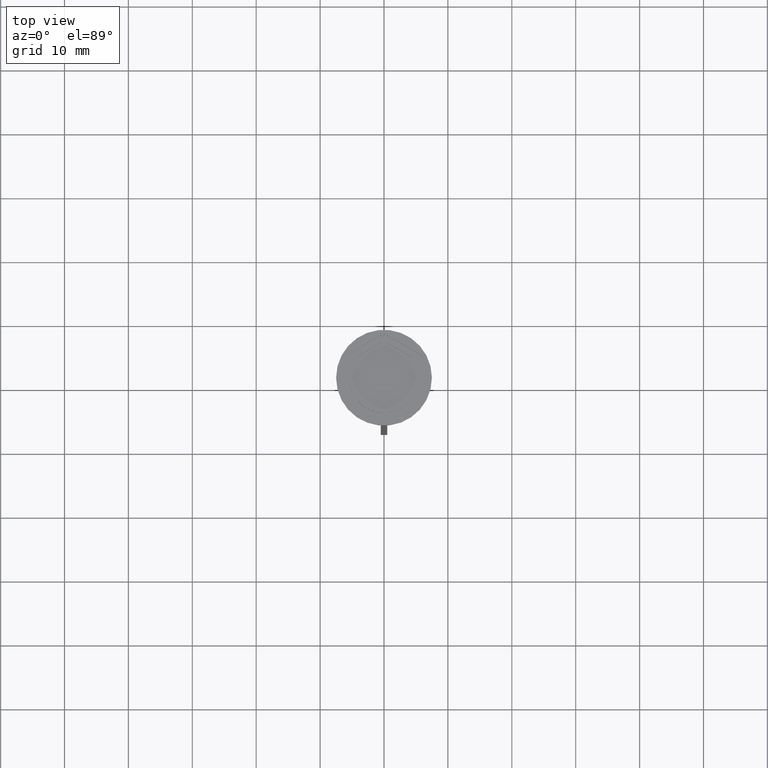
[diagram: clean part render]
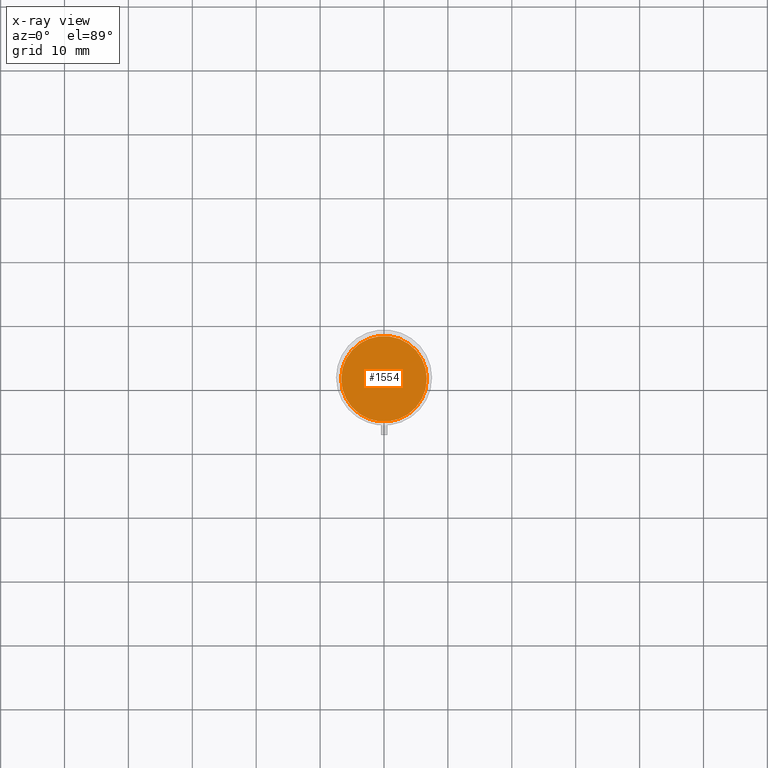
[diagram: x-ray — body ghosted, one internal face saturated and labeled with its STEP entity id]
A machine part, top view, then the same camera in x-ray: the body is ghosted and one INTERNAL B-rep face — a face not visible from any outside direction — is saturated and labeled: STEP entity #1554.
In plain terms, the highlighted planar face has unit normal (0, 0, -1).
Its self-contained STEP definition (entity closure, byte-faithful):
#185 = FACE_OUTER_BOUND ( 'NONE', #1254, .T. ) ;
#226 = DIRECTION ( 'NONE',  ( 0.000000000000000000, 0.000000000000000000, -1.000000000000000000 ) ) ;
#237 = CARTESIAN_POINT ( 'NONE',  ( 0.000000000000000000, 0.000000000000000000, -10.50000000000000178 ) ) ;
#274 = CARTESIAN_POINT ( 'NONE',  ( 0.000000000000000000, 0.000000000000000000, -10.50000000000000178 ) ) ;
#290 = ORIENTED_EDGE ( 'NONE', *, *, #1698, .T. ) ;
#559 = AXIS2_PLACEMENT_3D ( 'NONE', #2044, #890, #1702 ) ;
#744 = VERTEX_POINT ( 'NONE', #2126 ) ;
#756 = PLANE ( 'NONE',  #2208 ) ;
#890 = DIRECTION ( 'NONE',  ( -0.000000000000000000, -0.000000000000000000, 1.000000000000000000 ) ) ;
#990 = DIRECTION ( 'NONE',  ( -1.000000000000000000, 0.000000000000000000, -0.000000000000000000 ) ) ;
#1124 = CIRCLE ( 'NONE', #559, 6.700000000000001066 ) ;
#1235 = DIRECTION ( 'NONE',  ( -1.000000000000000000, 0.000000000000000000, 0.000000000000000000 ) ) ;
#1254 = EDGE_LOOP ( 'NONE', ( #290, #2467 ) ) ;
#1402 = CARTESIAN_POINT ( 'NONE',  ( 6.700000000000001066, 8.388830574159370862E-16, -10.50000000000000178 ) ) ;
#1408 = DIRECTION ( 'NONE',  ( -0.000000000000000000, -0.000000000000000000, 1.000000000000000000 ) ) ;
#1416 = EDGE_CURVE ( 'NONE', #1955, #744, #1124, .T. ) ;
#1554 = ADVANCED_FACE ( 'NONE', ( #185 ), #756, .F. ) ;
#1698 = EDGE_CURVE ( 'NONE', #744, #1955, #1719, .T. ) ;
#1702 = DIRECTION ( 'NONE',  ( -1.000000000000000000, 0.000000000000000000, 0.000000000000000000 ) ) ;
#1719 = CIRCLE ( 'NONE', #2492, 6.700000000000001066 ) ;
#1955 = VERTEX_POINT ( 'NONE', #1402 ) ;
#2044 = CARTESIAN_POINT ( 'NONE',  ( 0.000000000000000000, 0.000000000000000000, -10.50000000000000178 ) ) ;
#2126 = CARTESIAN_POINT ( 'NONE',  ( -6.700000000000001066, 0.000000000000000000, -10.50000000000000178 ) ) ;
#2208 = AXIS2_PLACEMENT_3D ( 'NONE', #237, #226, #990 ) ;
#2467 = ORIENTED_EDGE ( 'NONE', *, *, #1416, .T. ) ;
#2492 = AXIS2_PLACEMENT_3D ( 'NONE', #274, #1408, #1235 ) ;